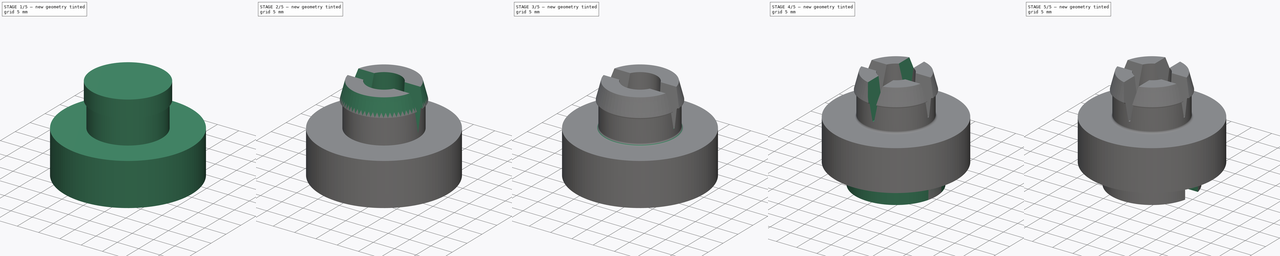
[diagram: build sequence overview — one tinted view per stage of 5, left to right]
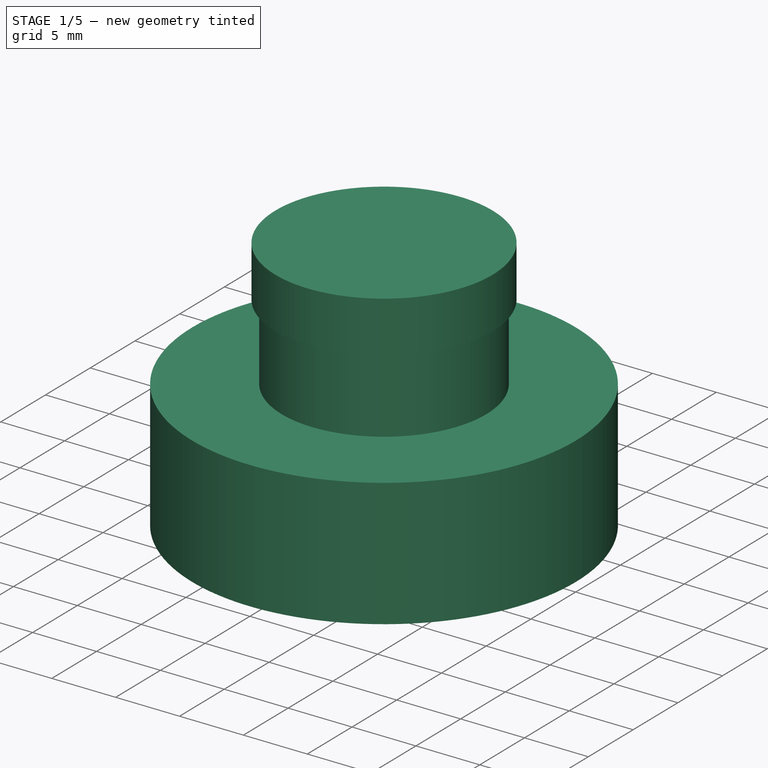
[diagram: stage 1 of 5 — iso view after this stage's code; geometry added in this stage tinted green]
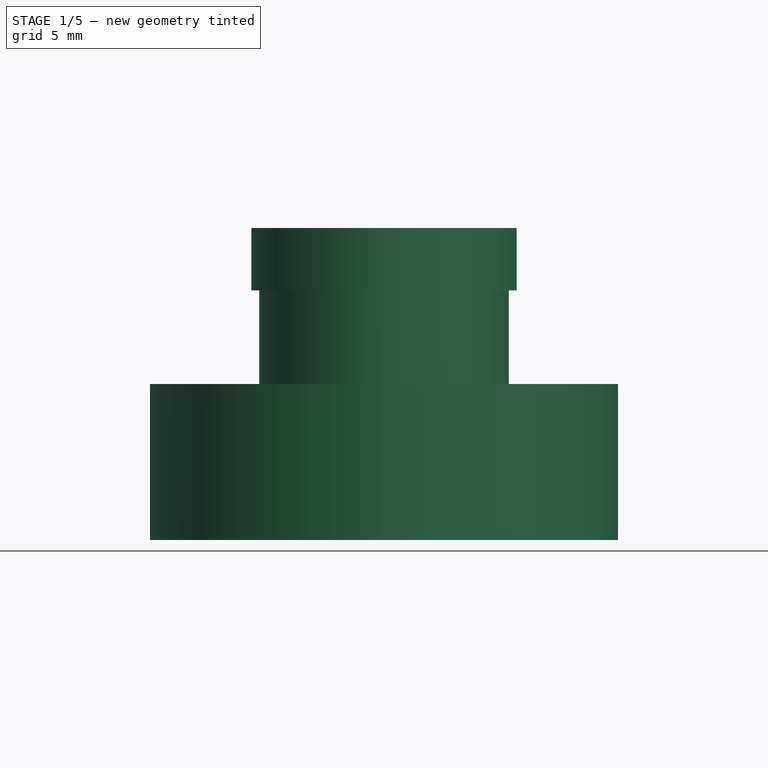
[diagram: stage 1 of 5 — front view after this stage's code; geometry added in this stage tinted green]
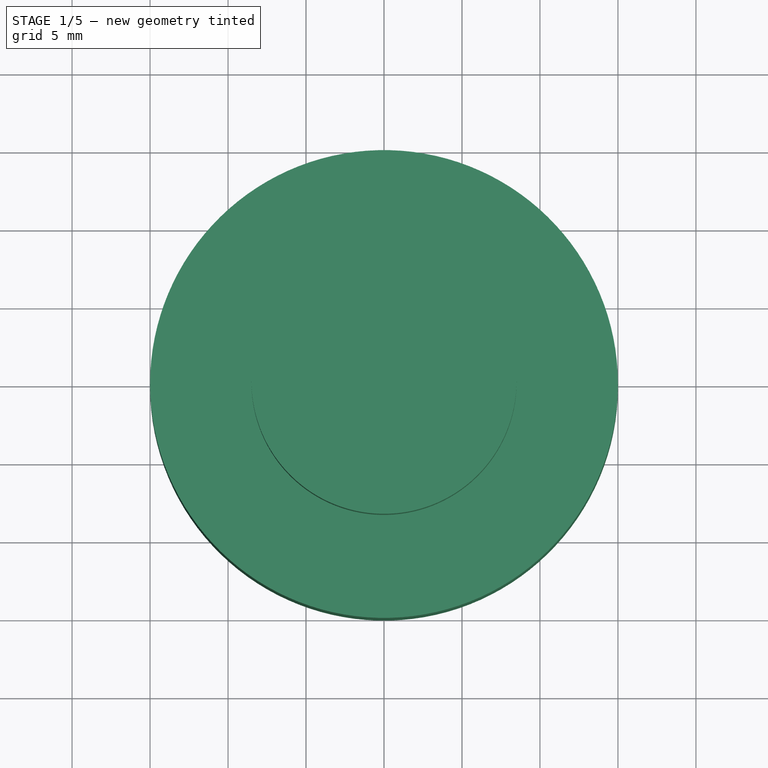
[diagram: stage 1 of 5 — top view after this stage's code; geometry added in this stage tinted green]
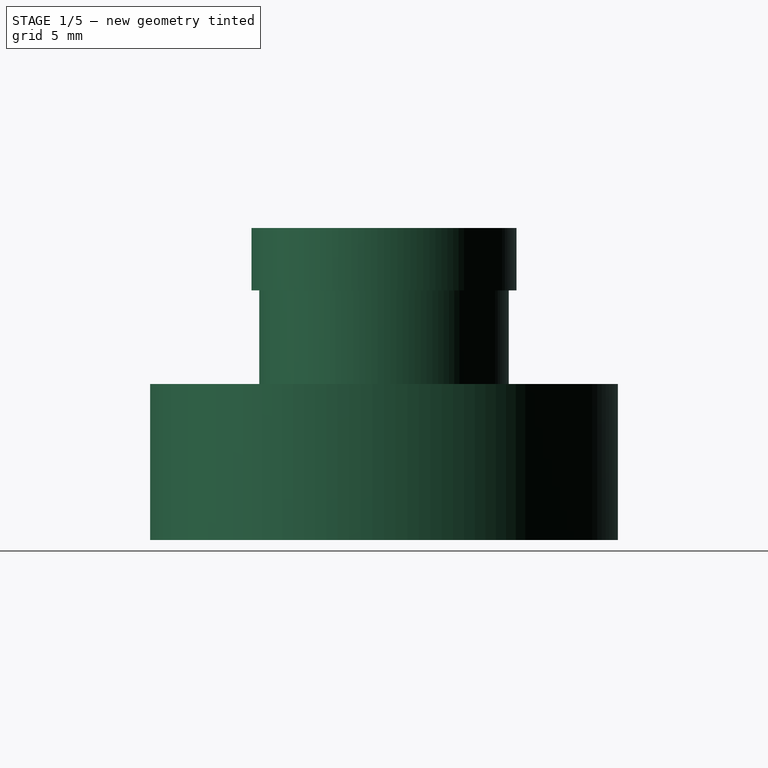
[diagram: stage 1 of 5 — right view after this stage's code; geometry added in this stage tinted green]
FCSTD DOCUMENT  (FreeCAD 1.1R)
Label: feet
License: All rights reserved
LicenseURL: https://en.wikipedia.org/wiki/All_rights_reserved
objects: Sketcher::SketchObject×12, PartDesign::Pocket×7, PartDesign::Pad×4, PartDesign::Fillet×3, PartDesign::Chamfer×3, App::Point×2, PartDesign::Body×2
note: 77 computed .brp shape members not serialized (recipe doc carries the construction recipe); baked Part::Feature solids carry a one-line shape summary decoded from their .brp

FEATURE [PartDesign::Body] Body  label="Feet2"
  AllowCompound = false
  Group = -> [Sketch,Pad,Sketch001,Pocket,Sketch003,Pocket002,Sketch004,Pocket003,Fillet]
  Origin = -> Origin
  Tip = -> Fillet
FEATURE [App::Point] Origin003  label="Origin-Point001"
  Role = Origin
FEATURE [Sketcher::SketchObject] Sketch005
  ArcFitTolerance = 1e-06
  AttachmentSupport = -> [Origin002]
  ExternalTypes = [0]
  FullyConstrained = true
  MakeInternals = true
  MapMode = 5
  _ExternalGeoVersion = 1
  sketch-geometry (1):
    g0: Circle CenterX=0 CenterY=0 CenterZ=0 NormalX=0 NormalY=0 NormalZ=1 AngleXU=0 Radius=8
  constraints (2):
    c: Diameter(g0) = 16
    c: Coincident(g0,g-1)
FEATURE [PartDesign::Pad] Pad001
  Direction = (0,0,1)
  Length = 20
  Length2 = 10
  Profile = -> Sketch005
  ReferenceAxis = -> Sketch005 [N_Axis]
  Refine = true
  SideType = 0
  Suppressed = false
  Type = 0
  Type2 = 0
FEATURE [Sketcher::SketchObject] Sketch006
  ArcFitTolerance = 1e-06
  AttachmentSupport = -> [Origin002]
  ExternalTypes = [0]
  FullyConstrained = true
  MakeInternals = true
  MapMode = 5
  _ExternalGeoVersion = 1
  sketch-geometry (1):
    g0: Circle CenterX=0 CenterY=0 CenterZ=0 NormalX=0 NormalY=0 NormalZ=1 AngleXU=0 Radius=15
  constraints (2):
    c: Coincident(g0,g-1)
    c: Diameter(g0) = 30
FEATURE [PartDesign::Pad] Pad002
  BaseFeature = -> Pad001
  Direction = (0,0,1)
  Length = 10
  Length2 = 10
  Profile = -> Sketch006
  ReferenceAxis = -> Sketch006 [N_Axis]
  Refine = true
  SideType = 0
  Suppressed = false
  Type = 0
  Type2 = 0
FEATURE [Sketcher::SketchObject] Sketch007
  ArcFitTolerance = 1e-06
  AttachmentSupport = -> [Origin002]
  ExternalTypes = [0]
  FullyConstrained = true
  MakeInternals = true
  MapMode = 5
  _ExternalGeoVersion = 1
FEATURE [Sketcher::SketchObject] Sketch008
  ArcFitTolerance = 1e-06
  AttachmentOffset = pos=(0,0,20) rot=(0,0,1;0rad)
  AttachmentSupport = -> [Origin002]
  ExternalTypes = [0]
  FullyConstrained = true
  MakeInternals = true
  MapMode = 5
  Placement = pos=(0,0,20) rot=(0,0,1;0rad)
  _ExternalGeoVersion = 1
  sketch-geometry (1):
    g0: Circle CenterX=0 CenterY=0 CenterZ=0 NormalX=0 NormalY=0 NormalZ=1 AngleXU=0 Radius=8.5
  constraints (2):
    c: Coincident(g0,g-1)
    c: Diameter(g0) = 17
FEATURE [PartDesign::Pad] Pad003
  BaseFeature = -> Pad002
  Direction = (0,0,1)
  Length = 4
  Length2 = 10
  Profile = -> Sketch008
  ReferenceAxis = -> Sketch008 [N_Axis]
  Refine = true
  Reversed = true
  SideType = 0
  Suppressed = false
  Type = 0
  Type2 = 0
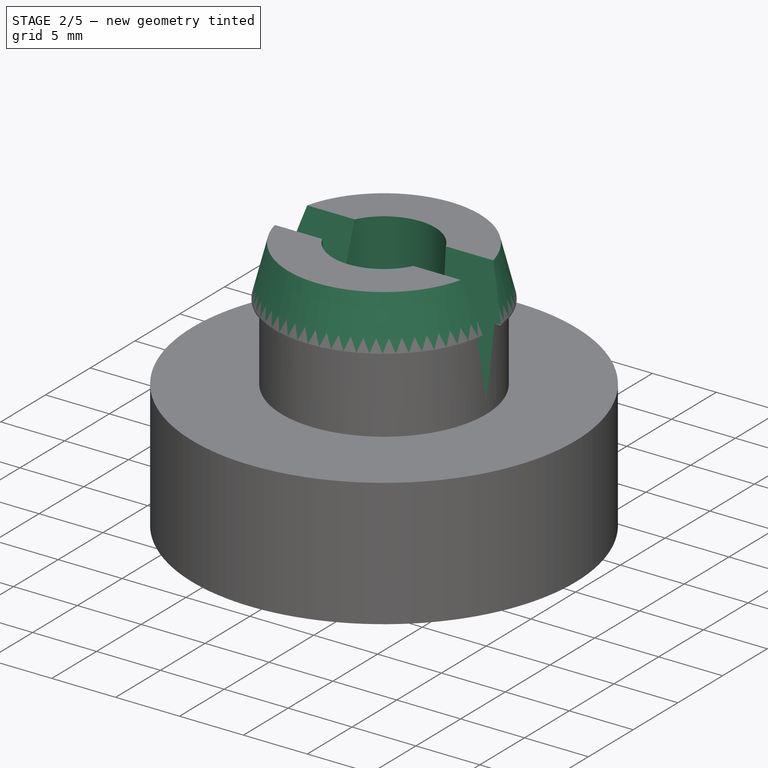
[diagram: stage 2 of 5 — iso view after this stage's code; geometry added in this stage tinted green]
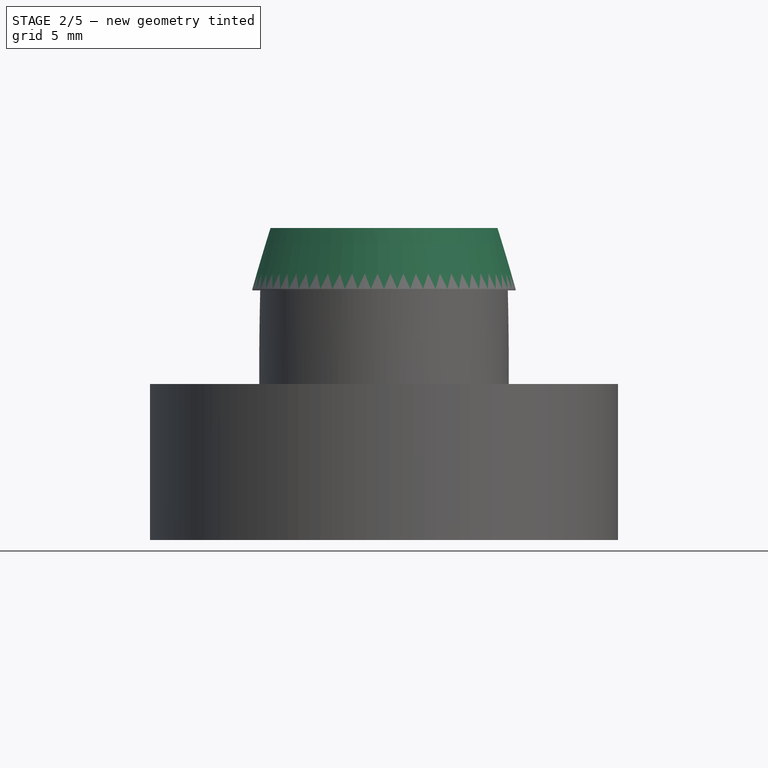
[diagram: stage 2 of 5 — front view after this stage's code; geometry added in this stage tinted green]
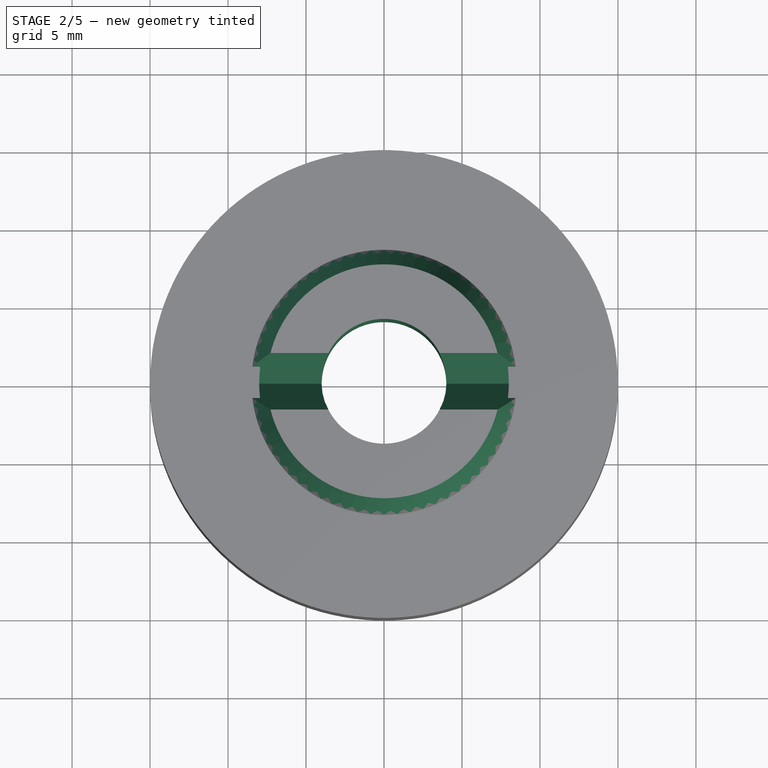
[diagram: stage 2 of 5 — top view after this stage's code; geometry added in this stage tinted green]
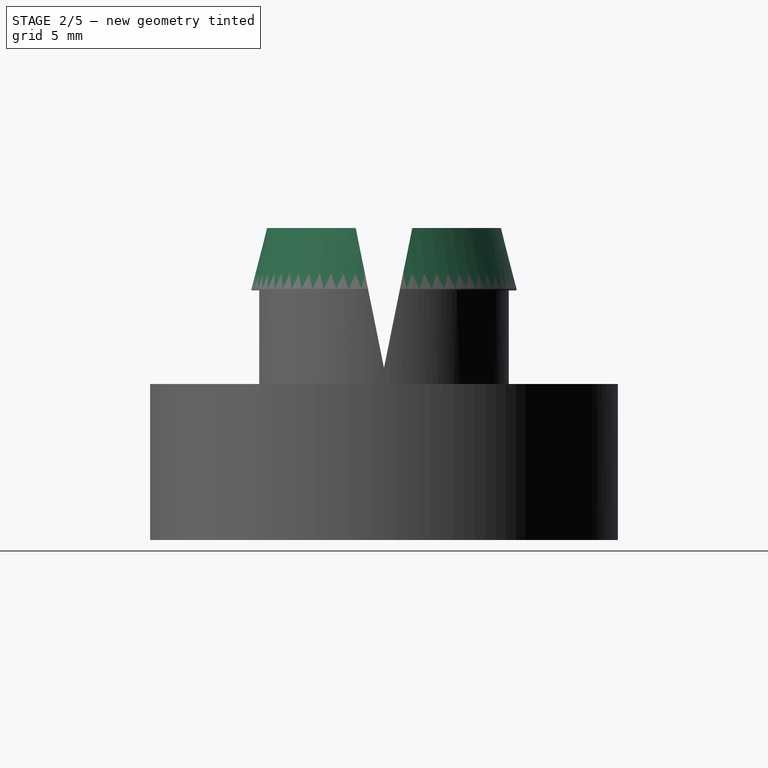
[diagram: stage 2 of 5 — right view after this stage's code; geometry added in this stage tinted green]
FEATURE [PartDesign::Chamfer] Chamfer
  Angle = 45
  Base = -> Pad003 [Edge9]
  BaseFeature = -> Pad003
  ChamferType = 1
  FlipDirection = false
  Refine = true
  Size = 3.9
  Size2 = 1
  SupportTransform = false
  Suppressed = false
  UseAllEdges = false
FEATURE [Sketcher::SketchObject] Sketch009
  ArcFitTolerance = 1e-06
  AttachmentSupport = -> [Origin002]
  ExternalTypes = [0]
  FullyConstrained = true
  MakeInternals = true
  MapMode = 5
  _ExternalGeoVersion = 1
  sketch-geometry (1):
    g0: Circle CenterX=0 CenterY=0 CenterZ=0 NormalX=0 NormalY=0 NormalZ=1 AngleXU=0 Radius=4
  constraints (2):
    c: Diameter(g0) = 8
    c: Coincident(g0,g-1)
FEATURE [PartDesign::Pocket] Pocket004
  BaseFeature = -> Chamfer
  Direction = (0,0,-1)
  Length = 22
  Length2 = 5
  Profile = -> Sketch009
  ReferenceAxis = -> Sketch009 [N_Axis]
  Refine = true
  Reversed = true
  SideType = 0
  Suppressed = false
  Type = 0
  Type2 = 0
FEATURE [Sketcher::SketchObject] Sketch010
  ArcFitTolerance = 1e-06
  AttachmentSupport = -> [Origin002]
  ExternalTypes = [0]
  FullyConstrained = true
  MakeInternals = true
  MapMode = 5
  _ExternalGeoVersion = 1
  sketch-geometry (1):
    g0: Circle CenterX=0 CenterY=0 CenterZ=0 NormalX=0 NormalY=0 NormalZ=1 AngleXU=0 Radius=7.5
  constraints (2):
    c: Coincident(g0,g-1)
    c: Diameter(g0) = 15
FEATURE [PartDesign::Pocket] Pocket005
  BaseFeature = -> Pocket004
  Direction = (0,0,-1)
  Length = 8
  Length2 = 5
  Profile = -> Sketch010
  ReferenceAxis = -> Sketch010 [N_Axis]
  Refine = true
  Reversed = true
  SideType = 0
  Suppressed = false
  Type = 0
  Type2 = 0
FEATURE [Sketcher::SketchObject] Sketch011
  ArcFitTolerance = 1e-06
  AttachmentSupport = -> [Origin002]
  ExternalTypes = [0]
  FullyConstrained = false
  MakeInternals = true
  MapMode = 5
  Placement = pos=(0,0,0) rot=(0.57735,0.57735,0.57735;2.0944rad)
  _ExternalGeoVersion = 1
  sketch-geometry (3):
    g0: LineSegment StartX=0 StartY=11.0298 StartZ=0 EndX=-2 EndY=20.9298 EndZ=0
    g1: LineSegment StartX=-2 StartY=20.9298 StartZ=0 EndX=2 EndY=20.9298 EndZ=0
    g2: LineSegment StartX=2 StartY=20.9298 StartZ=0 EndX=0 EndY=11.0298 EndZ=0
  constraints (7):
    c: PointOnObject(g0,g-2)
    c: Coincident(g0,g1)
    c: Coincident(g1,g2)
    c: Coincident(g2,g0)
    c: Symmetric(g0,g1,g-2)
    c: DistanceX(g1,g1) = 4
    c: Distance(g0,g1) = 9.9
FEATURE [PartDesign::Pocket] Pocket006
  BaseFeature = -> Pocket005
  Direction = (-1,0,0)
  Length = 22
  Length2 = 5
  Profile = -> Sketch011
  ReferenceAxis = -> Sketch011 [N_Axis]
  Refine = true
  Reversed = true
  SideType = 2
  Suppressed = false
  Type = 0
  Type2 = 0
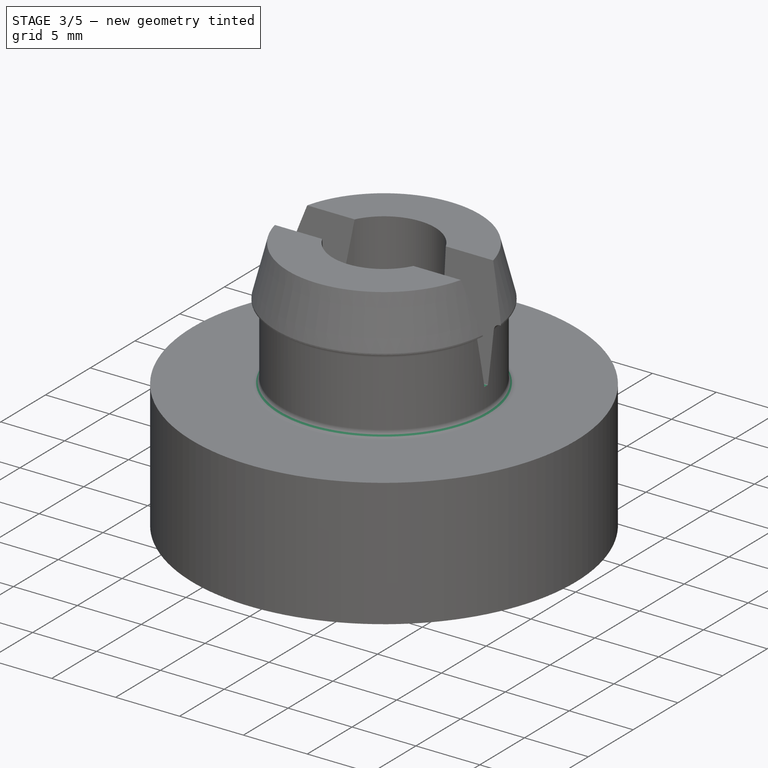
[diagram: stage 3 of 5 — iso view after this stage's code; geometry added in this stage tinted green]
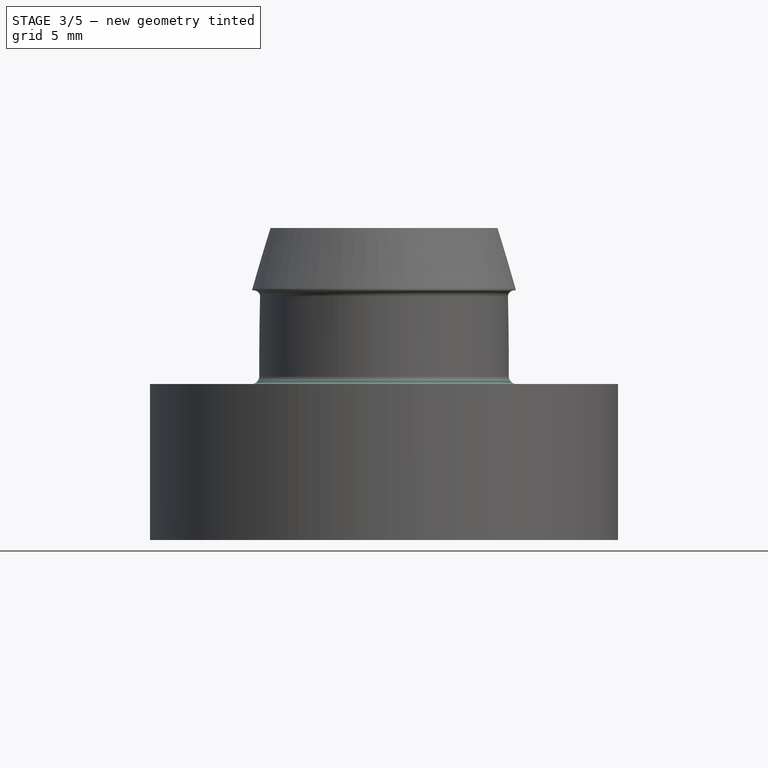
[diagram: stage 3 of 5 — front view after this stage's code; geometry added in this stage tinted green]
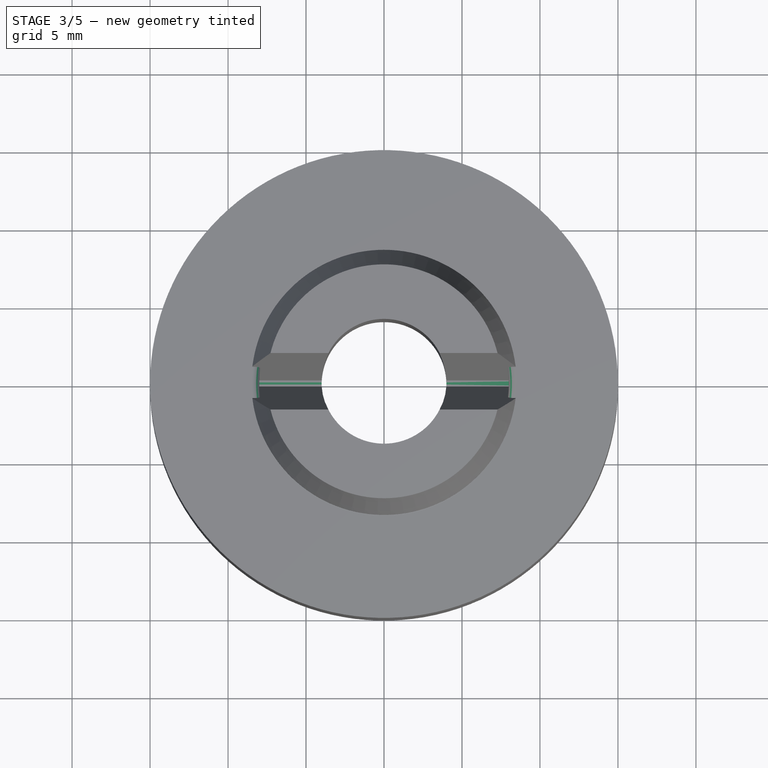
[diagram: stage 3 of 5 — top view after this stage's code; geometry added in this stage tinted green]
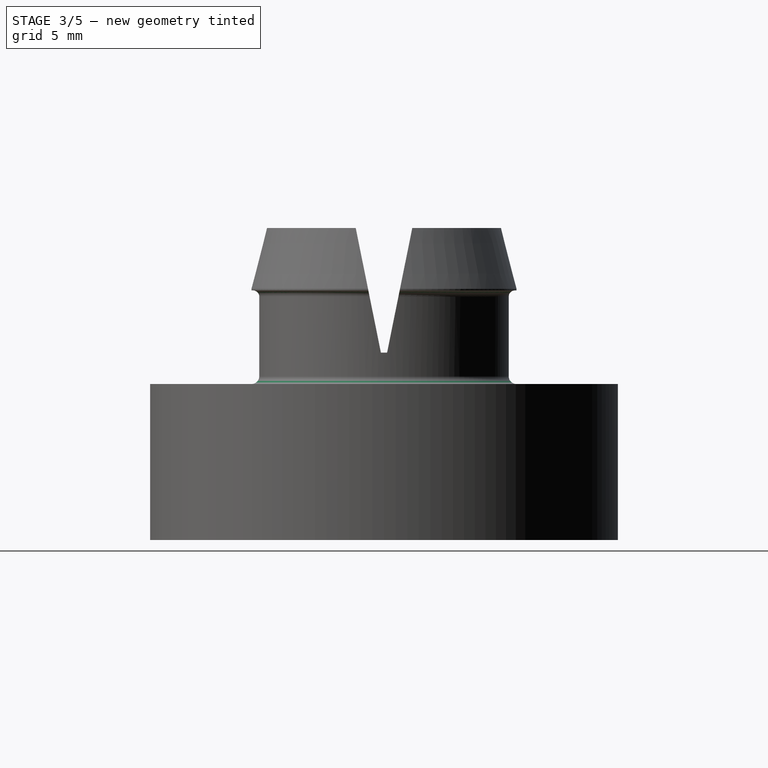
[diagram: stage 3 of 5 — right view after this stage's code; geometry added in this stage tinted green]
FEATURE [PartDesign::Fillet] Fillet001
  Base = -> Pocket006 [Edge33,Edge14]
  BaseFeature = -> Pocket006
  Radius = 0.4
  Refine = true
  SupportTransform = false
  Suppressed = false
  UseAllEdges = false
FEATURE [PartDesign::Fillet] Fillet002
  Base = -> Fillet001 [Edge20]
  BaseFeature = -> Fillet001
  Radius = 0.5
  Refine = true
  SupportTransform = false
  Suppressed = false
  UseAllEdges = false
FEATURE [PartDesign::Chamfer] Chamfer001
  Angle = 45
  Base = -> Fillet002 [Edge15,Edge26]
  BaseFeature = -> Fillet002
  ChamferType = 0
  FlipDirection = false
  Refine = true
  Size = 1
  Size2 = 1
  SupportTransform = false
  Suppressed = false
  UseAllEdges = false
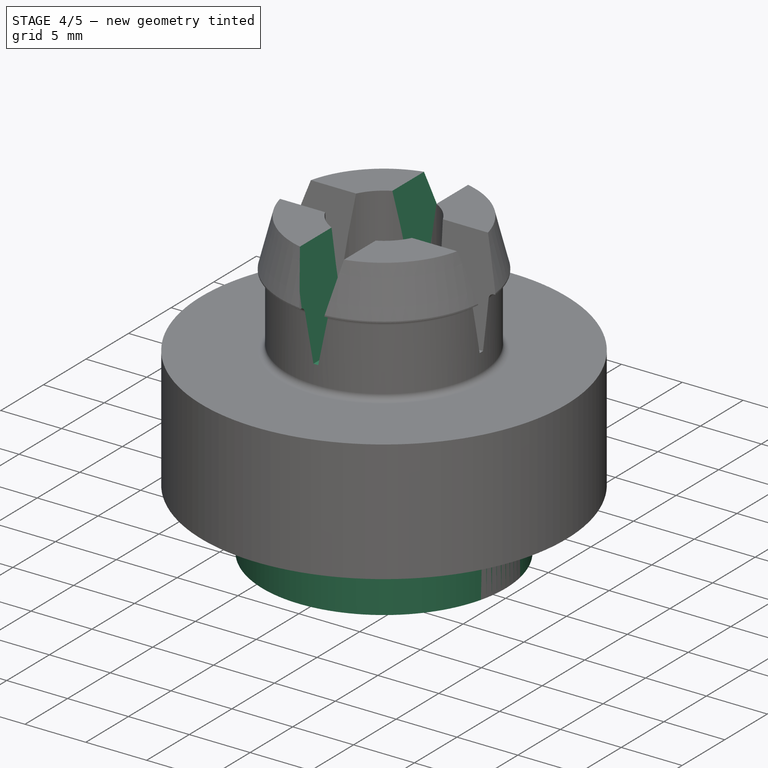
[diagram: stage 4 of 5 — iso view after this stage's code; geometry added in this stage tinted green]
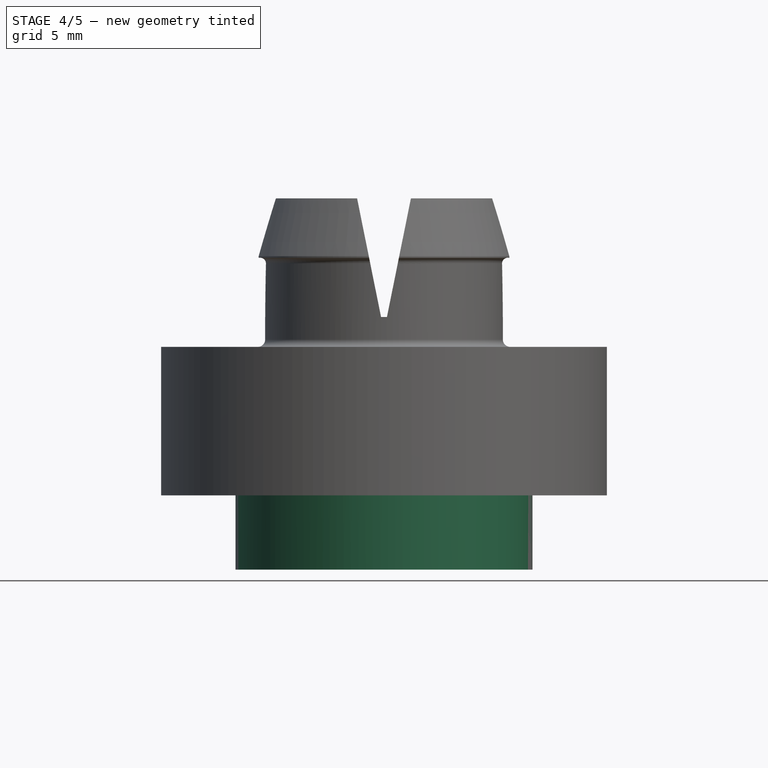
[diagram: stage 4 of 5 — front view after this stage's code; geometry added in this stage tinted green]
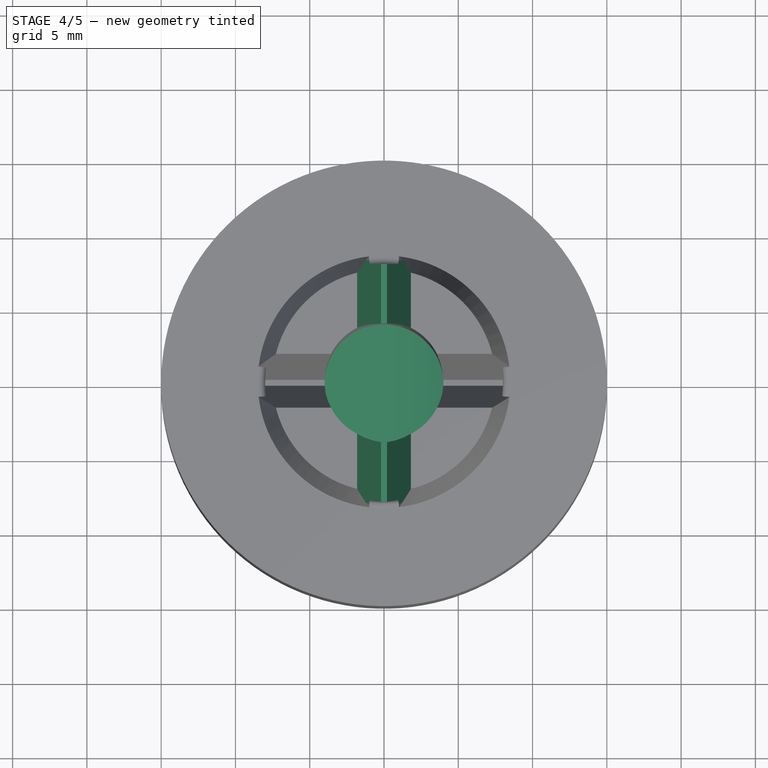
[diagram: stage 4 of 5 — top view after this stage's code; geometry added in this stage tinted green]
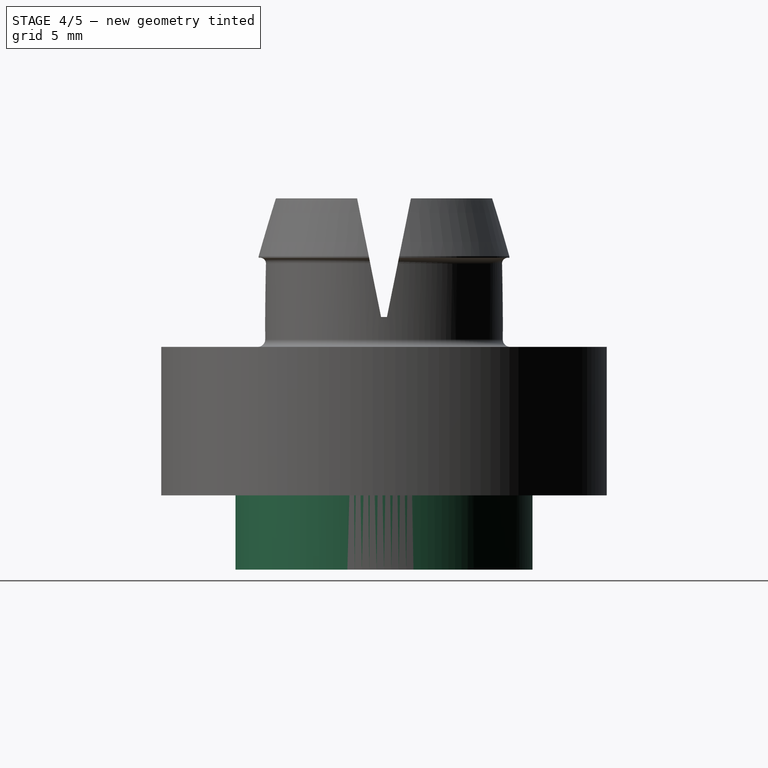
[diagram: stage 4 of 5 — right view after this stage's code; geometry added in this stage tinted green]
FEATURE [App::Point] Origin001  label="Origin-Point"
  Role = Origin
FEATURE [Sketcher::SketchObject] Sketch
  ArcFitTolerance = 1e-06
  AttachmentSupport = -> [Origin]
  ExternalTypes = [0]
  FullyConstrained = true
  MakeInternals = true
  MapMode = 5
  _ExternalGeoVersion = 1
  sketch-geometry (1):
    g0: Circle CenterX=0 CenterY=0 CenterZ=0 NormalX=0 NormalY=0 NormalZ=1 AngleXU=0 Radius=10
  constraints (2):
    c: Coincident(g0,g-1)
    c: Diameter(g0) = 20
FEATURE [PartDesign::Pad] Pad
  Direction = (0,0,1)
  Length = 10
  Length2 = 5
  Profile = -> Sketch
  ReferenceAxis = -> Sketch [N_Axis]
  Refine = true
  SideType = 1
  Suppressed = false
  Type = 0
  Type2 = 0
FEATURE [Sketcher::SketchObject] Sketch001
  ArcFitTolerance = 1e-06
  AttachmentSupport = -> [Origin]
  ExternalTypes = [0]
  FullyConstrained = true
  MakeInternals = true
  MapMode = 5
  Placement = pos=(0,0,0) rot=(1,0,0;1.5708rad)
  _ExternalGeoVersion = 1
  sketch-geometry (1):
    g0: Circle CenterX=0 CenterY=17.5 CenterZ=0 NormalX=0 NormalY=0 NormalZ=1 AngleXU=0 Radius=12.5
  constraints (3):
    c: PointOnObject(g0,g-2)
    c: Diameter(g0) = 25
    c: Distance(g0,g-1) = 17.5
FEATURE [PartDesign::Pocket] Pocket
  BaseFeature = -> Pad
  Direction = (0,1,-2e-16)
  Length = 22
  Length2 = 5
  Profile = -> Sketch001
  ReferenceAxis = -> Sketch001 [N_Axis]
  Refine = true
  SideType = 2
  Suppressed = false
  Type = 0
  Type2 = 0
FEATURE [Sketcher::SketchObject] Sketch012
  ArcFitTolerance = 1e-06
  AttachmentOffset = pos=(0,0,0) rot=(0,1,0;1.5708rad)
  AttachmentSupport = -> [Origin002]
  ExternalTypes = [0]
  FullyConstrained = false
  MakeInternals = true
  MapMode = 5
  Placement = pos=(0,0,0) rot=(0,0.707107,0.707107;3.14159rad)
  _ExternalGeoVersion = 1
  sketch-geometry (3):
    g0: LineSegment StartX=0 StartY=11.0298 StartZ=0 EndX=-2 EndY=20.9298 EndZ=0
    g1: LineSegment StartX=-2 StartY=20.9298 StartZ=0 EndX=2 EndY=20.9298 EndZ=0
    g2: LineSegment StartX=2 StartY=20.9298 StartZ=0 EndX=0 EndY=11.0298 EndZ=0
  constraints (7):
    c: PointOnObject(g0,g-2)
    c: Coincident(g0,g1)
    c: Coincident(g1,g2)
    c: Coincident(g2,g0)
    c: Symmetric(g0,g1,g-2)
    c: DistanceX(g1,g1) = 4
    c: Distance(g0,g1) = 9.9
FEATURE [PartDesign::Pocket] Pocket007
  BaseFeature = -> Chamfer001
  Direction = (-2e-16,-1,0)
  Length = 20
  Length2 = 5
  Profile = -> Sketch012
  ReferenceAxis = -> Sketch012 [N_Axis]
  Refine = true
  SideType = 2
  Suppressed = false
  Type = 0
  Type2 = 0
FEATURE [PartDesign::Chamfer] Chamfer002
  Angle = 45
  Base = -> Pocket007 [Edge35,Edge60]
  BaseFeature = -> Pocket007
  ChamferType = 0
  FlipDirection = false
  Refine = true
  Size = 1
  Size2 = 1
  SupportTransform = false
  Suppressed = false
  UseAllEdges = false
FEATURE [PartDesign::Body] Body001  label="Feet3"
  AllowCompound = false
  Group = -> [Sketch005,Pad001,Sketch006,Pad002,Sketch007,Sketch008,Pad003,Chamfer,Sketch009,Pocket004,Sketch010,Pocket005,Sketch011,Pocket006,Fillet001,Fillet002,Chamfer001,Sketch012,Pocket007,Chamfer002]
  Origin = -> Origin002
  Tip = -> Chamfer002
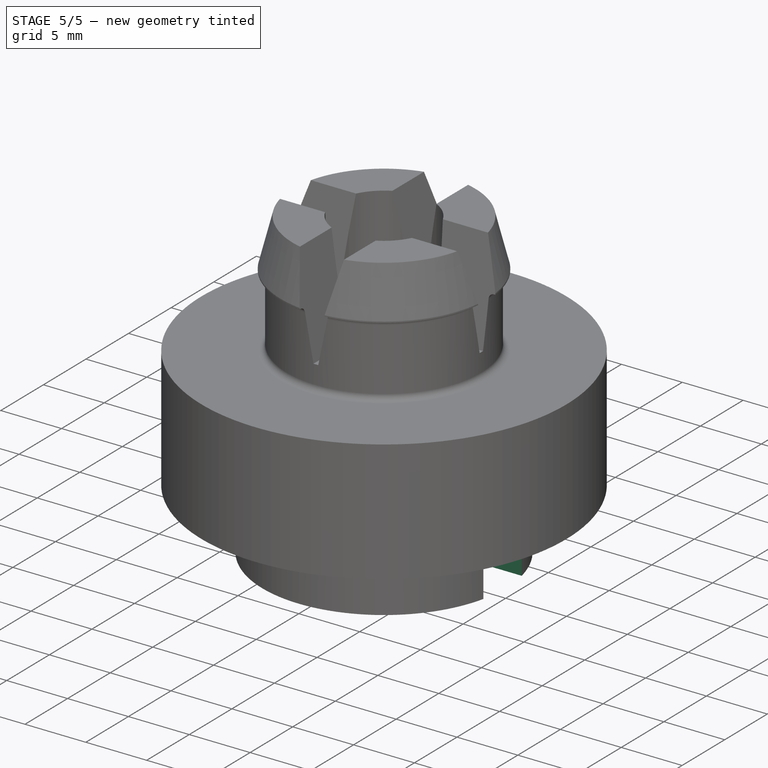
[diagram: stage 5 of 5 — iso view after this stage's code; geometry added in this stage tinted green]
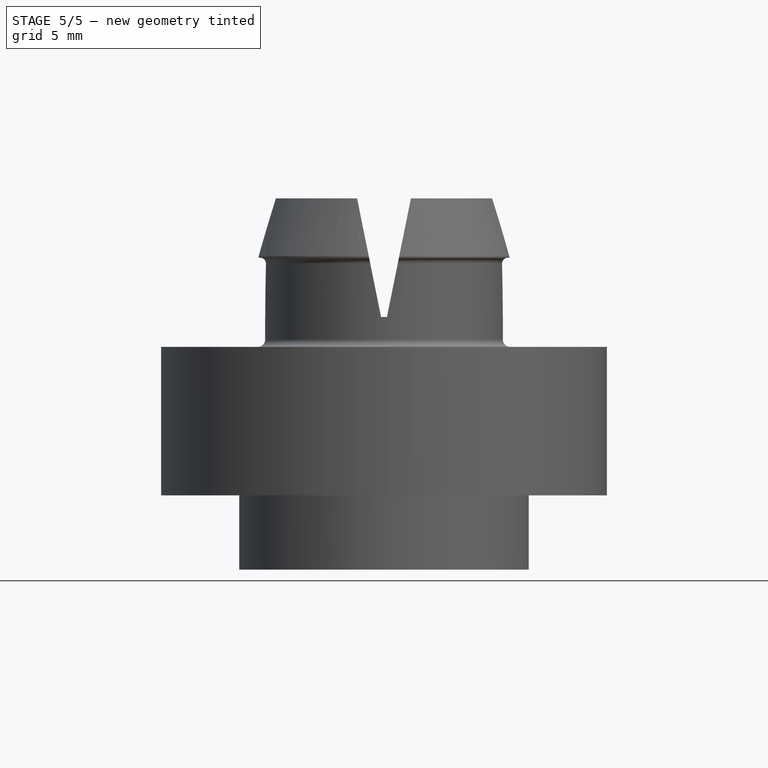
[diagram: stage 5 of 5 — front view after this stage's code; geometry added in this stage tinted green]
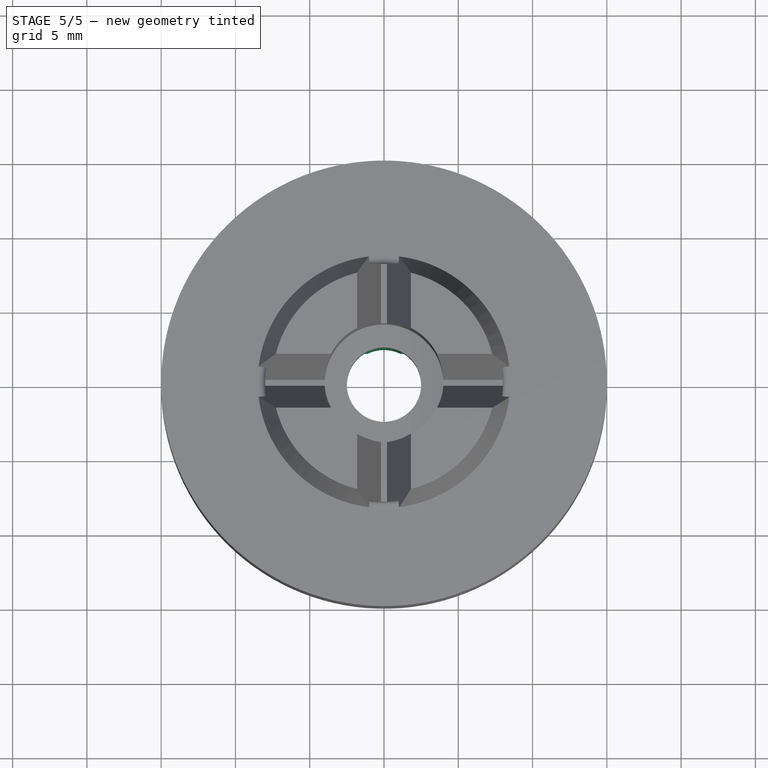
[diagram: stage 5 of 5 — top view after this stage's code; geometry added in this stage tinted green]
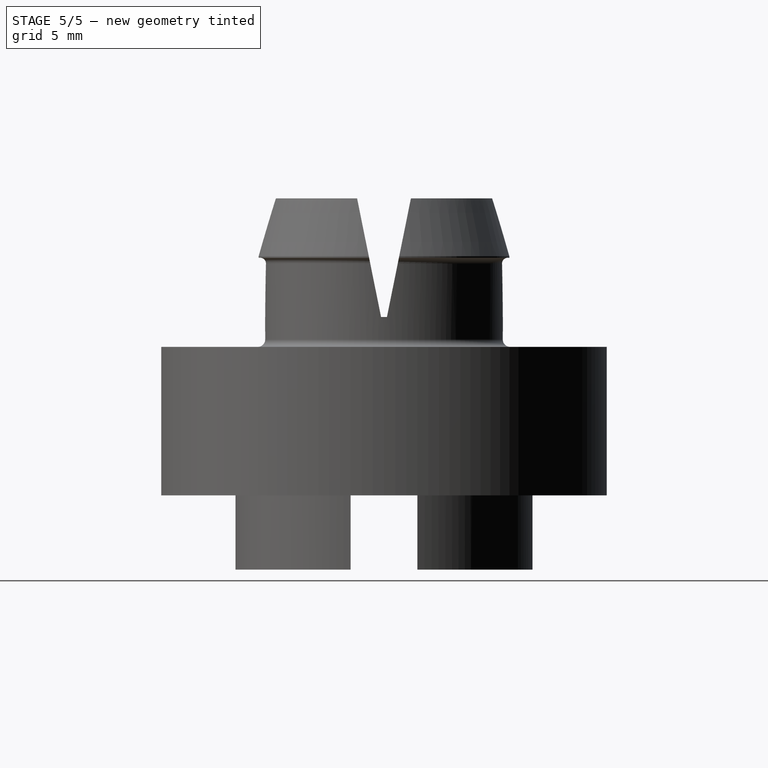
[diagram: stage 5 of 5 — right view after this stage's code; geometry added in this stage tinted green]
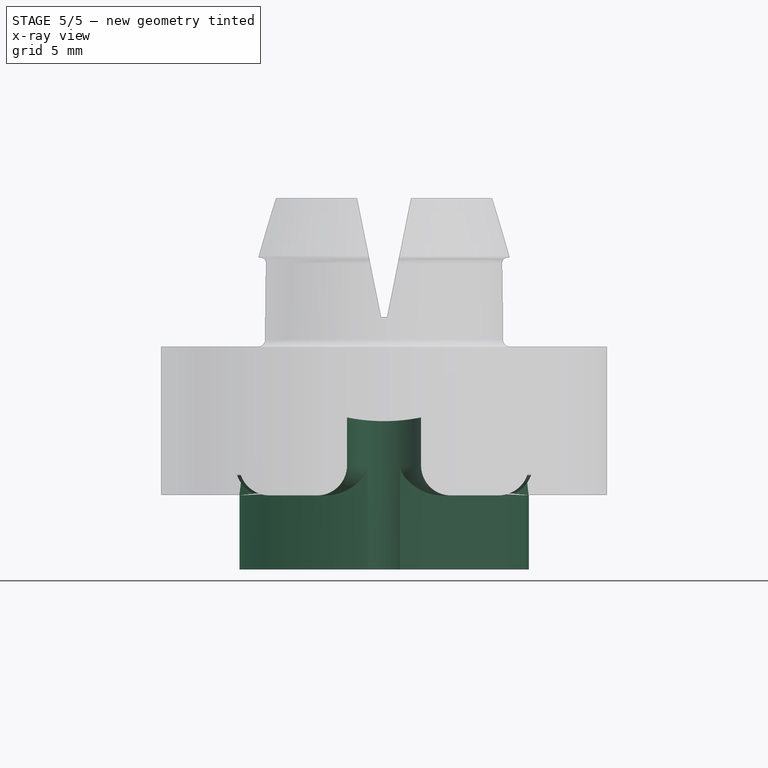
[diagram: stage 5 of 5 — x-ray composite at the front view; earlier geometry ghosted, this stage's added geometry solid]
FEATURE [Sketcher::SketchObject] Sketch003
  ArcFitTolerance = 1e-06
  AttachmentSupport = -> [Origin]
  ExternalTypes = [0]
  FullyConstrained = true
  MakeInternals = true
  MapMode = 5
  _ExternalGeoVersion = 1
  sketch-geometry (1):
    g0: Circle CenterX=0 CenterY=0 CenterZ=0 NormalX=0 NormalY=0 NormalZ=1 AngleXU=0 Radius=2.5
  constraints (2):
    c: Coincident(g0,g-1)
    c: Diameter(g0) = 5
FEATURE [PartDesign::Pocket] Pocket002
  BaseFeature = -> Pocket
  Direction = (0,0,-1)
  Length = 15
  Length2 = 5
  Profile = -> Sketch003
  ReferenceAxis = -> Sketch003 [N_Axis]
  Refine = true
  Reversed = true
  SideType = 2
  Suppressed = false
  Type = 0
  Type2 = 0
FEATURE [Sketcher::SketchObject] Sketch004
  ArcFitTolerance = 1e-06
  AttachmentSupport = -> [Origin]
  ExternalTypes = [0]
  FullyConstrained = true
  MakeInternals = true
  MapMode = 5
  _ExternalGeoVersion = 1
  sketch-geometry (4):
    g0: LineSegment StartX=-20 StartY=2.25 StartZ=0 EndX=-20 EndY=-2.25 EndZ=0
    g1: LineSegment StartX=-20 StartY=-2.25 StartZ=0 EndX=20 EndY=-2.25 EndZ=0
    g2: LineSegment StartX=20 StartY=-2.25 StartZ=0 EndX=20 EndY=2.25 EndZ=0
    g3: LineSegment StartX=20 StartY=2.25 StartZ=0 EndX=-20 EndY=2.25 EndZ=0
  constraints (11):
    c: Coincident(g0,g1)
    c: Coincident(g1,g2)
    c: Coincident(g2,g3)
    c: Coincident(g3,g0)
    c: Vertical(g0)
    c: Horizontal(g1)
    c: Horizontal(g3)
    c: DistanceY(g2,g2) = 4.5
    c: Symmetric(g2,g1,g-1)
    c: DistanceX(g3,g3) = 40
    c: Distance(g1,g-2) = 20
FEATURE [PartDesign::Pocket] Pocket003
  BaseFeature = -> Pocket002
  Direction = (0,0,-1)
  Length = 8
  Length2 = 5
  Profile = -> Sketch004
  ReferenceAxis = -> Sketch004 [N_Axis]
  Refine = true
  SideType = 0
  Suppressed = false
  Type = 0
  Type2 = 0
FEATURE [PartDesign::Fillet] Fillet
  Base = -> Pocket003 [Edge10,Edge15,Edge6,Edge24]
  BaseFeature = -> Pocket003
  Radius = 2
  Refine = true
  SupportTransform = false
  Suppressed = false
  UseAllEdges = false
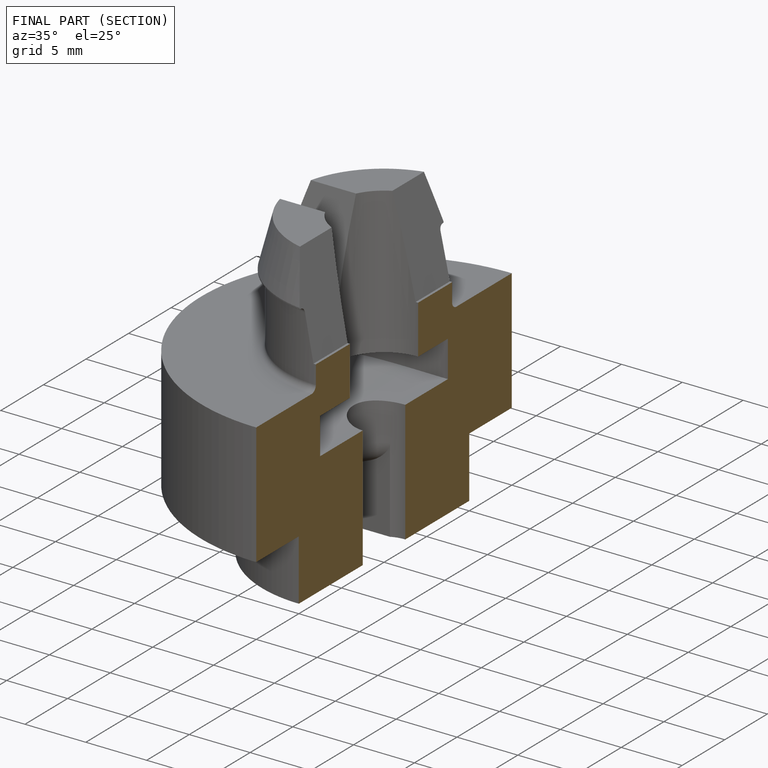
[diagram: finished part — half-section view (interior)]
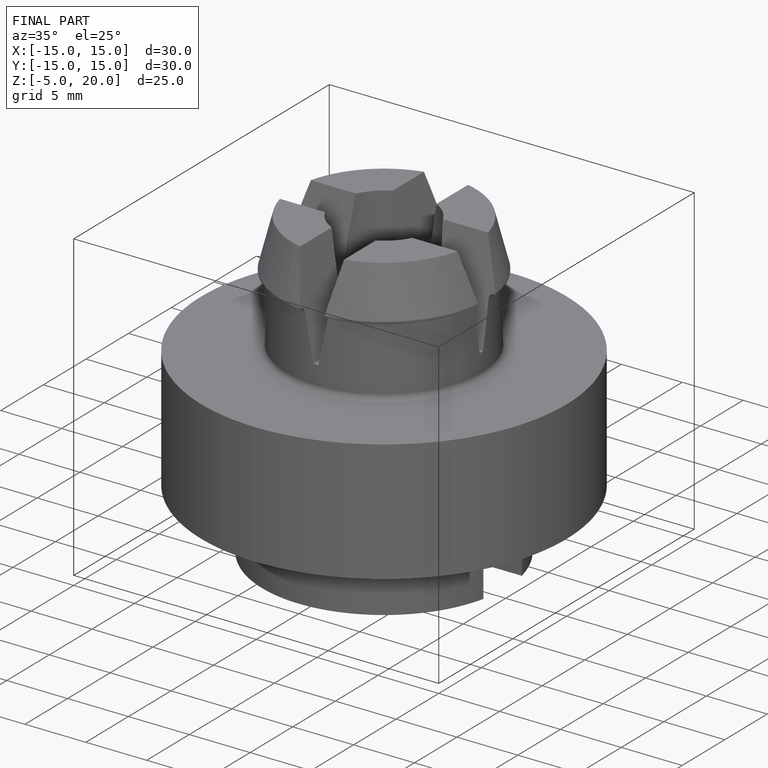
[diagram: finished part — iso view with bounding-box wireframe]
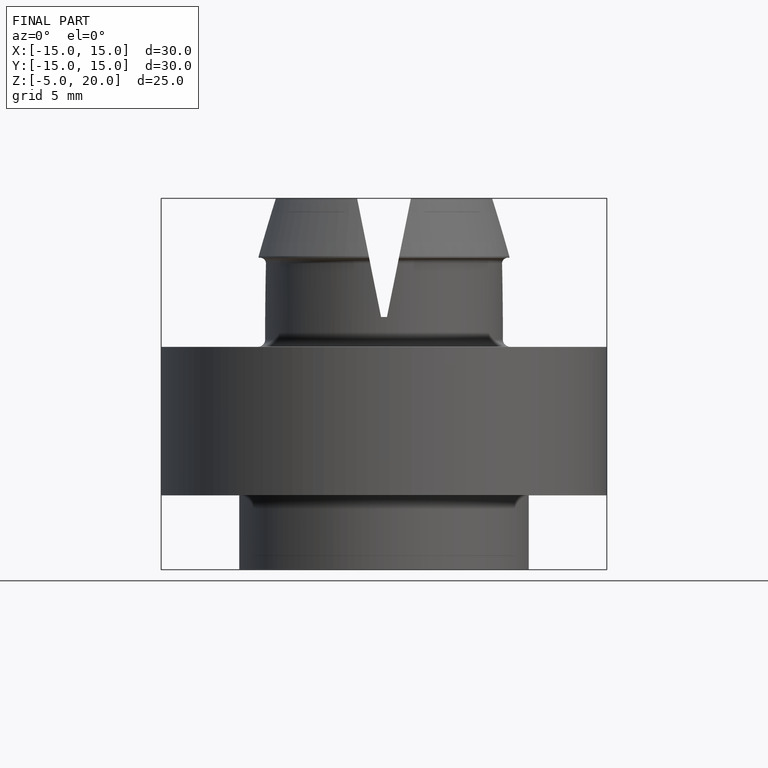
[diagram: finished part — front view with bounding-box wireframe]
